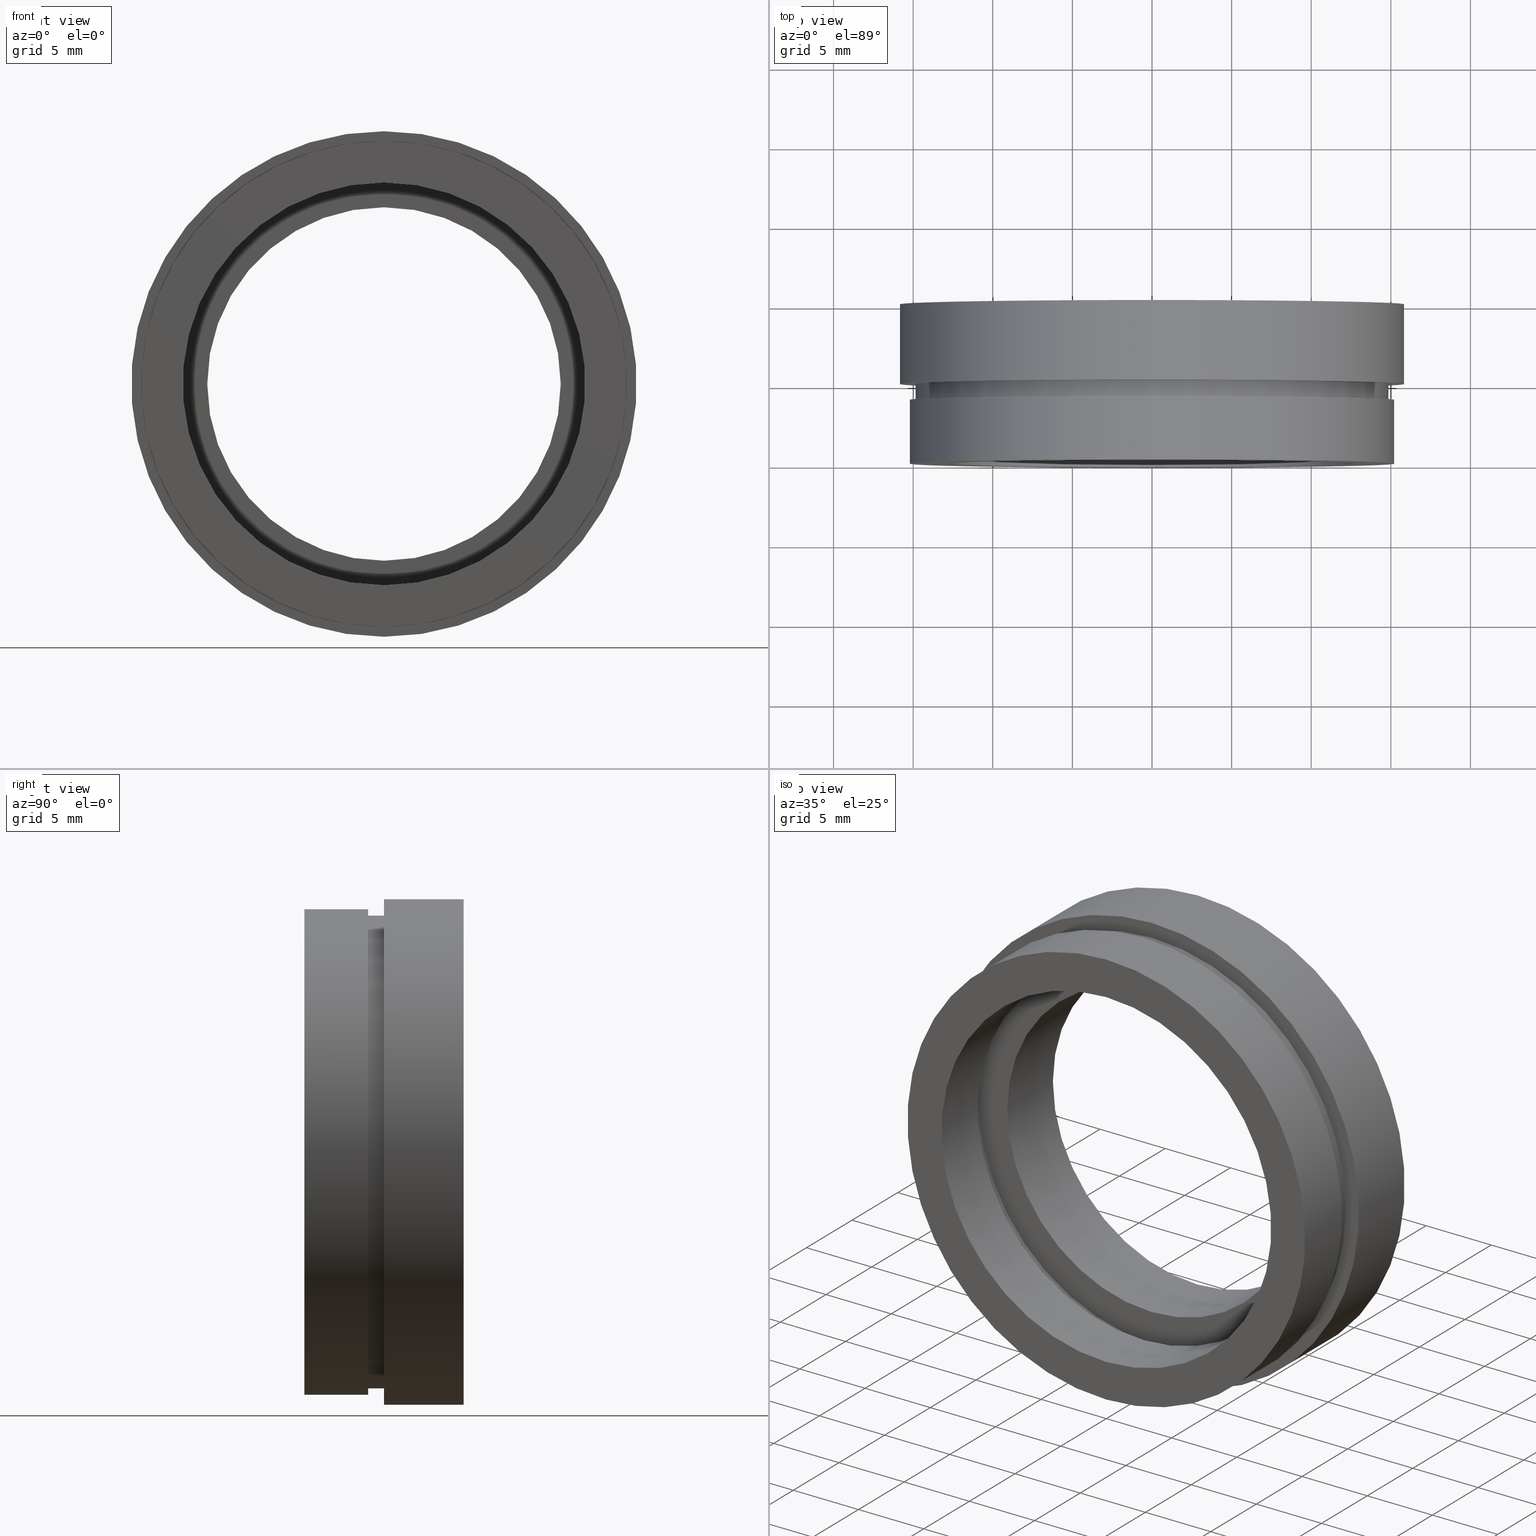
[diagram: canonical four-view strip — front | top / right | iso, engineering-drawing reading convention]
A machine part, canonical four-view strip (front | top / right | iso — engineering-drawing reading convention). The complete STEP part file that produces these views, byte-faithful:
ISO-10303-21;
HEADER;
FILE_DESCRIPTION (( 'STEP AP214' ),
    '1' );
FILE_NAME ('504105.STEP',
    '2019-10-10T02:18:36',
    ( 'user' ),
    ( '΢���й�' ),
    'SwSTEP 2.0',
    'SolidWorks 2016',
    '' );
FILE_SCHEMA (( 'AUTOMOTIVE_DESIGN' ));
ENDSEC;

DATA;
#1 = ORIENTED_EDGE ( 'NONE', *, *, #354, .F. ) ;
#2 = EDGE_CURVE ( 'NONE', #604, #603, #29, .T. ) ;
#3 = CIRCLE ( 'NONE', #611, 15.25000000000000200 ) ;
#4 = FACE_OUTER_BOUND ( 'NONE', #186, .T. ) ;
#5 = CARTESIAN_POINT ( 'NONE',  ( 0.0000000000000000000, 5.000000000000000900, 15.87500000000000000 ) ) ;
#6 = MECHANICAL_DESIGN_GEOMETRIC_PRESENTATION_REPRESENTATION (  '', ( #251 ), #299 ) ;
#7 = DIRECTION ( 'NONE',  ( -0.0000000000000000000, 1.000000000000000000, -0.0000000000000000000 ) ) ;
#8 = ORIENTED_EDGE ( 'NONE', *, *, #454, .T. ) ;
#9 = CIRCLE ( 'NONE', #371, 13.25000000000000000 ) ;
#10 = ORIENTED_EDGE ( 'NONE', *, *, #60, .T. ) ;
#11 =( LENGTH_UNIT ( ) NAMED_UNIT ( * ) SI_UNIT ( .MILLI., .METRE. ) );
#12 = DIRECTION ( 'NONE',  ( -0.0000000000000000000, 1.000000000000000000, -0.0000000000000000000 ) ) ;
#13 = DIRECTION ( 'NONE',  ( 0.0000000000000000000, 0.0000000000000000000, 1.000000000000000000 ) ) ;
#14 = CARTESIAN_POINT ( 'NONE',  ( 0.0000000000000000000, 5.000000000000000900, 0.0000000000000000000 ) ) ;
#15 = VERTEX_POINT ( 'NONE', #156 ) ;
#16 = DIRECTION ( 'NONE',  ( 0.0000000000000000000, 0.0000000000000000000, 1.000000000000000000 ) ) ;
#17 = AXIS2_PLACEMENT_3D ( 'NONE', #252, #158, #314 ) ;
#18 = DIRECTION ( 'NONE',  ( -0.0000000000000000000, 1.000000000000000000, -0.0000000000000000000 ) ) ;
#19 = LINE ( 'NONE', #239, #523 ) ;
#20 = AXIS2_PLACEMENT_3D ( 'NONE', #531, #187, #331 ) ;
#21 = CARTESIAN_POINT ( 'NONE',  ( 0.0000000000000000000, 5.000000000000000900, 0.0000000000000000000 ) ) ;
#22 =( LENGTH_UNIT ( ) NAMED_UNIT ( * ) SI_UNIT ( .MILLI., .METRE. ) );
#23 = APPLICATION_CONTEXT ( 'automotive_design' ) ;
#24 = DIRECTION ( 'NONE',  ( -0.0000000000000000000, 1.000000000000000000, -0.0000000000000000000 ) ) ;
#25 = CARTESIAN_POINT ( 'NONE',  ( 0.0000000000000000000, 13.74468085106383300, 15.87500000000000000 ) ) ;
#26 = ORIENTED_EDGE ( 'NONE', *, *, #218, .T. ) ;
#27 = ADVANCED_FACE ( 'NONE', ( #535, #68 ), #173, .F. ) ;
#28 = ORIENTED_EDGE ( 'NONE', *, *, #346, .T. ) ;
#29 = CIRCLE ( 'NONE', #112, 11.10000000000000000 ) ;
#30 = EDGE_CURVE ( 'NONE', #263, #418, #401, .T. ) ;
#31 = SURFACE_SIDE_STYLE ('',( #422 ) ) ;
#32 =( NAMED_UNIT ( * ) PLANE_ANGLE_UNIT ( ) SI_UNIT ( $, .RADIAN. ) );
#33 = PRESENTATION_LAYER_ASSIGNMENT (  '', '', ( #473 ) ) ;
#34 = EDGE_LOOP ( 'NONE', ( #425, #179, #278, #554 ) ) ;
#35 = SURFACE_STYLE_FILL_AREA ( #107 ) ;
#36 = CYLINDRICAL_SURFACE ( 'NONE', #272, 11.10000000000000000 ) ;
#37 = EDGE_LOOP ( 'NONE', ( #533, #234 ) ) ;
#38 = PLANE ( 'NONE',  #456 ) ;
#39 =( NAMED_UNIT ( * ) SI_UNIT ( $, .STERADIAN. ) SOLID_ANGLE_UNIT ( ) );
#40 = CARTESIAN_POINT ( 'NONE',  ( 0.0000000000000000000, 3.999999999999998200, 0.0000000000000000000 ) ) ;
#41 = UNCERTAINTY_MEASURE_WITH_UNIT (LENGTH_MEASURE( 1.000000000000000100E-005 ), #11, 'distance_accuracy_value', 'NONE');
#42 = EDGE_LOOP ( 'NONE', ( #289, #551 ) ) ;
#43 = ADVANCED_FACE ( 'NONE', ( #268, #562 ), #193, .F. ) ;
#44 = DIRECTION ( 'NONE',  ( 0.0000000000000000000, -0.0000000000000000000, -1.000000000000000000 ) ) ;
#45 = VERTEX_POINT ( 'NONE', #171 ) ;
#46 = ADVANCED_FACE ( 'NONE', ( #311 ), #256, .F. ) ;
#47 = MECHANICAL_DESIGN_GEOMETRIC_PRESENTATION_REPRESENTATION (  '', ( #473 ), #464 ) ;
#48 = CARTESIAN_POINT ( 'NONE',  ( 1.548565877521828200E-015, 13.74468085106383300, -12.64500000000000000 ) ) ;
#49 = VECTOR ( 'NONE', #389, 1000.000000000000000 ) ;
#50 = VERTEX_POINT ( 'NONE', #5 ) ;
#51 = DIRECTION ( 'NONE',  ( -0.0000000000000000000, 1.000000000000000000, -0.0000000000000000000 ) ) ;
#52 = ORIENTED_EDGE ( 'NONE', *, *, #437, .T. ) ;
#53 =( LENGTH_UNIT ( ) NAMED_UNIT ( * ) SI_UNIT ( .MILLI., .METRE. ) );
#54 =( NAMED_UNIT ( * ) SI_UNIT ( $, .STERADIAN. ) SOLID_ANGLE_UNIT ( ) );
#55 = PRESENTATION_LAYER_ASSIGNMENT (  '', '', ( #558 ) ) ;
#56 = DIRECTION ( 'NONE',  ( 0.0000000000000000000, -0.0000000000000000000, -1.000000000000000000 ) ) ;
#57 = ADVANCED_BREP_SHAPE_REPRESENTATION ( '504105', ( #461, #601 ), #489 ) ;
#58 = DIRECTION ( 'NONE',  ( -0.0000000000000000000, 1.000000000000000000, -0.0000000000000000000 ) ) ;
#59 = ORIENTED_EDGE ( 'NONE', *, *, #354, .T. ) ;
#60 = EDGE_CURVE ( 'NONE', #595, #76, #19, .T. ) ;
#61 = LINE ( 'NONE', #524, #128 ) ;
#62 = PRESENTATION_LAYER_ASSIGNMENT (  '', '', ( #438 ) ) ;
#63 = ORIENTED_EDGE ( 'NONE', *, *, #237, .F. ) ;
#64 = DIRECTION ( 'NONE',  ( 0.0000000000000000000, -1.000000000000000000, 0.0000000000000000000 ) ) ;
#65 = EDGE_CURVE ( 'NONE', #537, #315, #147, .T. ) ;
#66 = FILL_AREA_STYLE ('',( #135 ) ) ;
#67 = VERTEX_POINT ( 'NONE', #259 ) ;
#68 = FACE_BOUND ( 'NONE', #441, .T. ) ;
#69 =( NAMED_UNIT ( * ) SI_UNIT ( $, .STERADIAN. ) SOLID_ANGLE_UNIT ( ) );
#70 = PRESENTATION_STYLE_ASSIGNMENT (( #472 ) ) ;
#71 =( GEOMETRIC_REPRESENTATION_CONTEXT ( 3 ) GLOBAL_UNCERTAINTY_ASSIGNED_CONTEXT ( ( #334 ) ) GLOBAL_UNIT_ASSIGNED_CONTEXT ( ( #444, #150, #498 ) ) REPRESENTATION_CONTEXT ( 'NONE', 'WORKASPACE' ) );
#72 = UNCERTAINTY_MEASURE_WITH_UNIT (LENGTH_MEASURE( 1.000000000000000100E-005 ), #53, 'distance_accuracy_value', 'NONE');
#73 =( NAMED_UNIT ( * ) SI_UNIT ( $, .STERADIAN. ) SOLID_ANGLE_UNIT ( ) );
#74 = CARTESIAN_POINT ( 'NONE',  ( 0.0000000000000000000, -1.734723475976807100E-015, 0.0000000000000000000 ) ) ;
#75 = PRESENTATION_LAYER_ASSIGNMENT (  '', '', ( #363 ) ) ;
#76 = VERTEX_POINT ( 'NONE', #195 ) ;
#77 = VERTEX_POINT ( 'NONE', #536 ) ;
#78 = ADVANCED_FACE ( 'NONE', ( #4 ), #368, .F. ) ;
#79 = AXIS2_PLACEMENT_3D ( 'NONE', #14, #394, #178 ) ;
#80 = PRODUCT_RELATED_PRODUCT_CATEGORY ( 'part', '', ( #561 ) ) ;
#81 = ORIENTED_EDGE ( 'NONE', *, *, #583, .F. ) ;
#82 = COLOUR_RGB ( '',1.000000000000000000, 1.000000000000000000, 1.000000000000000000 ) ;
#83 = CYLINDRICAL_SURFACE ( 'NONE', #317, 15.25000000000000200 ) ;
#84 = EDGE_CURVE ( 'NONE', #76, #497, #387, .T. ) ;
#85 = FILL_AREA_STYLE ('',( #592 ) ) ;
#86 = CARTESIAN_POINT ( 'NONE',  ( 0.0000000000000000000, 9.999999999999998200, 11.10000000000000000 ) ) ;
#87 = CARTESIAN_POINT ( 'NONE',  ( 0.0000000000000000000, 0.0000000000000000000, 0.0000000000000000000 ) ) ;
#88 = SURFACE_STYLE_USAGE ( .BOTH. , #479 ) ;
#89 = CARTESIAN_POINT ( 'NONE',  ( 1.818600496733820300E-015, 4.000000000000000000, -14.85000000000000500 ) ) ;
#90 =( GEOMETRIC_REPRESENTATION_CONTEXT ( 3 ) GLOBAL_UNCERTAINTY_ASSIGNED_CONTEXT ( ( #557 ) ) GLOBAL_UNIT_ASSIGNED_CONTEXT ( ( #501, #250, #545 ) ) REPRESENTATION_CONTEXT ( 'NONE', 'WORKASPACE' ) );
#91 = CIRCLE ( 'NONE', #609, 13.25000000000000000 ) ;
#92 = LINE ( 'NONE', #25, #469 ) ;
#93 = SURFACE_SIDE_STYLE ('',( #492 ) ) ;
#94 = VERTEX_POINT ( 'NONE', #103 ) ;
#95 = EDGE_CURVE ( 'NONE', #418, #263, #127, .T. ) ;
#96 = ADVANCED_FACE ( 'NONE', ( #194 ), #83, .T. ) ;
#97 = CARTESIAN_POINT ( 'NONE',  ( 0.0000000000000000000, 9.999999999999998200, 0.0000000000000000000 ) ) ;
#98 = AXIS2_PLACEMENT_3D ( 'NONE', #87, #477, #428 ) ;
#99 = CARTESIAN_POINT ( 'NONE',  ( 0.0000000000000000000, 3.999999999999996400, 12.64500000000000000 ) ) ;
#100 = COLOUR_RGB ( '',1.000000000000000000, 1.000000000000000000, 1.000000000000000000 ) ;
#101 = COLOUR_RGB ( '',1.000000000000000000, 1.000000000000000000, 1.000000000000000000 ) ;
#102 = CARTESIAN_POINT ( 'NONE',  ( 11.10000000000000000, 9.999999999999998200, 0.0000000000000000000 ) ) ;
#103 = CARTESIAN_POINT ( 'NONE',  ( 1.622657008870242900E-015, 3.999999999999998200, -13.25000000000000000 ) ) ;
#104 = SURFACE_STYLE_USAGE ( .BOTH. , #512 ) ;
#105 = ORIENTED_EDGE ( 'NONE', *, *, #322, .T. ) ;
#106 = SURFACE_STYLE_FILL_AREA ( #160 ) ;
#107 = FILL_AREA_STYLE ('',( #260 ) ) ;
#108 = ORIENTED_EDGE ( 'NONE', *, *, #520, .T. ) ;
#109 = CARTESIAN_POINT ( 'NONE',  ( 0.0000000000000000000, 13.74468085106383300, 0.0000000000000000000 ) ) ;
#110 = UNCERTAINTY_MEASURE_WITH_UNIT (LENGTH_MEASURE( 1.000000000000000100E-005 ), #377, 'distance_accuracy_value', 'NONE');
#111 = FILL_AREA_STYLE_COLOUR ( '', #509 ) ;
#112 = AXIS2_PLACEMENT_3D ( 'NONE', #408, #24, #13 ) ;
#113 = DIRECTION ( 'NONE',  ( -0.0000000000000000000, 1.000000000000000000, -0.0000000000000000000 ) ) ;
#114 = PRODUCT_DEFINITION ( 'δ֪', '', #565, #162 ) ;
#115 = FACE_BOUND ( 'NONE', #275, .T. ) ;
#116 = DIRECTION ( 'NONE',  ( 0.0000000000000000000, 0.0000000000000000000, 1.000000000000000000 ) ) ;
#117 = APPLICATION_PROTOCOL_DEFINITION ( 'draft international standard', 'automotive_design', 1998, #23 ) ;
#118 = SURFACE_STYLE_USAGE ( .BOTH. , #31 ) ;
#119 = EDGE_LOOP ( 'NONE', ( #546, #518, #52, #414 ) ) ;
#120 = ORIENTED_EDGE ( 'NONE', *, *, #443, .F. ) ;
#121 = CIRCLE ( 'NONE', #238, 13.25000000000000000 ) ;
#122 = VERTEX_POINT ( 'NONE', #433 ) ;
#123 = AXIS2_PLACEMENT_3D ( 'NONE', #166, #495, #410 ) ;
#124 = PLANE ( 'NONE',  #585 ) ;
#125 = EDGE_LOOP ( 'NONE', ( #229, #544, #294, #436 ) ) ;
#126 = FACE_OUTER_BOUND ( 'NONE', #174, .T. ) ;
#127 = CIRCLE ( 'NONE', #79, 14.85000000000000100 ) ;
#128 = VECTOR ( 'NONE', #300, 1000.000000000000000 ) ;
#129 = DIRECTION ( 'NONE',  ( 1.000000000000000000, 0.0000000000000000000, 0.0000000000000000000 ) ) ;
#130 = EDGE_CURVE ( 'NONE', #45, #603, #343, .T. ) ;
#131 = CARTESIAN_POINT ( 'NONE',  ( 0.0000000000000000000, 10.00000000000000000, 15.87500000000000000 ) ) ;
#132 = MECHANICAL_DESIGN_GEOMETRIC_PRESENTATION_REPRESENTATION (  '', ( #169 ), #549 ) ;
#133 = FACE_OUTER_BOUND ( 'NONE', #607, .T. ) ;
#134 = ORIENTED_EDGE ( 'NONE', *, *, #316, .T. ) ;
#135 = FILL_AREA_STYLE_COLOUR ( '', #366 ) ;
#136 = LINE ( 'NONE', #336, #393 ) ;
#137 = SURFACE_STYLE_FILL_AREA ( #247 ) ;
#138 = ORIENTED_EDGE ( 'NONE', *, *, #467, .F. ) ;
#139 = DIRECTION ( 'NONE',  ( 0.0000000000000000000, 0.0000000000000000000, 1.000000000000000000 ) ) ;
#140 =( GEOMETRIC_REPRESENTATION_CONTEXT ( 3 ) GLOBAL_UNCERTAINTY_ASSIGNED_CONTEXT ( ( #146 ) ) GLOBAL_UNIT_ASSIGNED_CONTEXT ( ( #453, #400, #69 ) ) REPRESENTATION_CONTEXT ( 'NONE', 'WORKASPACE' ) );
#141 = DIRECTION ( 'NONE',  ( 0.0000000000000000000, 0.0000000000000000000, 1.000000000000000000 ) ) ;
#142 = FILL_AREA_STYLE ('',( #529 ) ) ;
#143 = DIRECTION ( 'NONE',  ( -0.0000000000000000000, 1.000000000000000000, -0.0000000000000000000 ) ) ;
#144 = ORIENTED_EDGE ( 'NONE', *, *, #467, .T. ) ;
#145 = ADVANCED_FACE ( 'NONE', ( #516, #470 ), #177, .F. ) ;
#146 = UNCERTAINTY_MEASURE_WITH_UNIT (LENGTH_MEASURE( 1.000000000000000100E-005 ), #453, 'distance_accuracy_value', 'NONE');
#147 = LINE ( 'NONE', #48, #49 ) ;
#148 = EDGE_CURVE ( 'NONE', #122, #45, #462, .T. ) ;
#149 = VERTEX_POINT ( 'NONE', #99 ) ;
#150 =( NAMED_UNIT ( * ) PLANE_ANGLE_UNIT ( ) SI_UNIT ( $, .RADIAN. ) );
#151 = AXIS2_PLACEMENT_3D ( 'NONE', #548, #202, #505 ) ;
#152 = DIRECTION ( 'NONE',  ( -0.0000000000000000000, 1.000000000000000000, -0.0000000000000000000 ) ) ;
#153 = CARTESIAN_POINT ( 'NONE',  ( 0.0000000000000000000, 13.74468085106383300, 0.0000000000000000000 ) ) ;
#154 = AXIS2_PLACEMENT_3D ( 'NONE', #419, #224, #139 ) ;
#155 = ORIENTED_EDGE ( 'NONE', *, *, #476, .T. ) ;
#156 = CARTESIAN_POINT ( 'NONE',  ( 1.944126793646423200E-015, 10.00000000000000000, -15.87500000000000000 ) ) ;
#157 = CIRCLE ( 'NONE', #151, 15.87500000000000000 ) ;
#158 = DIRECTION ( 'NONE',  ( -0.0000000000000000000, 1.000000000000000000, 0.0000000000000000000 ) ) ;
#159 = PRESENTATION_STYLE_ASSIGNMENT (( #104 ) ) ;
#160 = FILL_AREA_STYLE ('',( #304 ) ) ;
#161 = ORIENTED_EDGE ( 'NONE', *, *, #84, .T. ) ;
#162 = PRODUCT_DEFINITION_CONTEXT ( 'detailed design', #319, 'design' ) ;
#163 = DIRECTION ( 'NONE',  ( -0.0000000000000000000, 1.000000000000000000, -0.0000000000000000000 ) ) ;
#164 = UNCERTAINTY_MEASURE_WITH_UNIT (LENGTH_MEASURE( 1.000000000000000100E-005 ), #575, 'distance_accuracy_value', 'NONE');
#165 = CARTESIAN_POINT ( 'NONE',  ( 14.85000000000000300, 4.000000000000000000, 0.0000000000000000000 ) ) ;
#166 = CARTESIAN_POINT ( 'NONE',  ( 0.0000000000000000000, 4.000000000000000000, 0.0000000000000000000 ) ) ;
#167 = PRESENTATION_STYLE_ASSIGNMENT (( #118 ) ) ;
#168 = ORIENTED_EDGE ( 'NONE', *, *, #203, .T. ) ;
#169 = STYLED_ITEM ( 'NONE', ( #328 ), #284 ) ;
#170 = COLOUR_RGB ( '',1.000000000000000000, 1.000000000000000000, 1.000000000000000000 ) ;
#171 = CARTESIAN_POINT ( 'NONE',  ( 0.0000000000000000000, 4.999999999999997300, 11.10000000000000000 ) ) ;
#172 = EDGE_LOOP ( 'NONE', ( #144, #8, #358, #318 ) ) ;
#173 = PLANE ( 'NONE',  #17 ) ;
#174 = EDGE_LOOP ( 'NONE', ( #161, #586 ) ) ;
#175 = EDGE_LOOP ( 'NONE', ( #333, #483 ) ) ;
#176 = EDGE_CURVE ( 'NONE', #315, #149, #323, .T. ) ;
#177 = PLANE ( 'NONE',  #351 ) ;
#178 = DIRECTION ( 'NONE',  ( 0.0000000000000000000, 0.0000000000000000000, 1.000000000000000000 ) ) ;
#179 = ORIENTED_EDGE ( 'NONE', *, *, #417, .T. ) ;
#180 = CARTESIAN_POINT ( 'NONE',  ( 0.0000000000000000000, 13.74468085106383300, 0.0000000000000000000 ) ) ;
#181 = SURFACE_SIDE_STYLE ('',( #242 ) ) ;
#182 = CARTESIAN_POINT ( 'NONE',  ( 0.0000000000000000000, 13.74468085106383300, 0.0000000000000000000 ) ) ;
#183 = CARTESIAN_POINT ( 'NONE',  ( 1.818600496733819900E-015, 13.74468085106383300, -14.85000000000000100 ) ) ;
#184 = AXIS2_PLACEMENT_3D ( 'NONE', #21, #458, #353 ) ;
#185 = CARTESIAN_POINT ( 'NONE',  ( 0.0000000000000000000, 13.74468085106383300, 0.0000000000000000000 ) ) ;
#186 = EDGE_LOOP ( 'NONE', ( #286, #63, #572, #134 ) ) ;
#187 = DIRECTION ( 'NONE',  ( -0.0000000000000000000, 1.000000000000000000, -0.0000000000000000000 ) ) ;
#188 = VECTOR ( 'NONE', #327, 1000.000000000000000 ) ;
#189 = VERTEX_POINT ( 'NONE', #222 ) ;
#190 = AXIS2_PLACEMENT_3D ( 'NONE', #180, #221, #573 ) ;
#191 = ADVANCED_FACE ( 'NONE', ( #133 ), #478, .F. ) ;
#192 = EDGE_CURVE ( 'NONE', #149, #315, #292, .T. ) ;
#193 = PLANE ( 'NONE',  #610 ) ;
#194 = FACE_OUTER_BOUND ( 'NONE', #172, .T. ) ;
#195 = CARTESIAN_POINT ( 'NONE',  ( 0.0000000000000000000, 4.000000000000000000, 15.25000000000000200 ) ) ;
#196 = AXIS2_PLACEMENT_3D ( 'NONE', #515, #502, #596 ) ;
#197 = DIRECTION ( 'NONE',  ( 0.0000000000000000000, 0.0000000000000000000, 1.000000000000000000 ) ) ;
#198 = FILL_AREA_STYLE_COLOUR ( '', #482 ) ;
#199 = SURFACE_STYLE_USAGE ( .BOTH. , #396 ) ;
#200 = EDGE_LOOP ( 'NONE', ( #243, #491, #10, #302 ) ) ;
#201 = DIRECTION ( 'NONE',  ( -0.0000000000000000000, 1.000000000000000000, -0.0000000000000000000 ) ) ;
#202 = DIRECTION ( 'NONE',  ( -0.0000000000000000000, 1.000000000000000000, -0.0000000000000000000 ) ) ;
#203 = EDGE_CURVE ( 'NONE', #214, #50, #390, .T. ) ;
#204 = AXIS2_PLACEMENT_3D ( 'NONE', #357, #18, #312 ) ;
#205 = ORIENTED_EDGE ( 'NONE', *, *, #95, .F. ) ;
#206 = ORIENTED_EDGE ( 'NONE', *, *, #30, .F. ) ;
#207 = CARTESIAN_POINT ( 'NONE',  ( 0.0000000000000000000, 0.0000000000000000000, 0.0000000000000000000 ) ) ;
#208 = VECTOR ( 'NONE', #7, 1000.000000000000000 ) ;
#209 = CYLINDRICAL_SURFACE ( 'NONE', #618, 12.64500000000000000 ) ;
#210 = DIRECTION ( 'NONE',  ( -0.0000000000000000000, 1.000000000000000000, -0.0000000000000000000 ) ) ;
#211 = ORIENTED_EDGE ( 'NONE', *, *, #30, .T. ) ;
#212 = MECHANICAL_DESIGN_GEOMETRIC_PRESENTATION_REPRESENTATION (  '', ( #519 ), #90 ) ;
#213 = LINE ( 'NONE', #183, #570 ) ;
#214 = VERTEX_POINT ( 'NONE', #310 ) ;
#215 = APPLICATION_PROTOCOL_DEFINITION ( 'draft international standard', 'automotive_design', 1998, #319 ) ;
#216 = UNCERTAINTY_MEASURE_WITH_UNIT (LENGTH_MEASURE( 1.000000000000000100E-005 ), #379, 'distance_accuracy_value', 'NONE');
#217 = CARTESIAN_POINT ( 'NONE',  ( 1.622657008870242900E-015, 13.74468085106383300, -13.25000000000000000 ) ) ;
#218 = EDGE_CURVE ( 'NONE', #15, #452, #411, .T. ) ;
#219 = CARTESIAN_POINT ( 'NONE',  ( 0.0000000000000000000, 13.74468085106383300, 11.10000000000000000 ) ) ;
#220 = AXIS2_PLACEMENT_3D ( 'NONE', #579, #511, #588 ) ;
#221 = DIRECTION ( 'NONE',  ( -0.0000000000000000000, 1.000000000000000000, -0.0000000000000000000 ) ) ;
#222 = CARTESIAN_POINT ( 'NONE',  ( 1.622657008870242900E-015, 4.999999999999999100, -13.25000000000000000 ) ) ;
#223 = PRESENTATION_STYLE_ASSIGNMENT (( #432 ) ) ;
#224 = DIRECTION ( 'NONE',  ( -0.0000000000000000000, 1.000000000000000000, -0.0000000000000000000 ) ) ;
#225 = DIRECTION ( 'NONE',  ( -0.0000000000000000000, 1.000000000000000000, -0.0000000000000000000 ) ) ;
#226 = AXIS2_PLACEMENT_3D ( 'NONE', #306, #547, #503 ) ;
#227 = DIRECTION ( 'NONE',  ( 0.0000000000000000000, 0.0000000000000000000, 1.000000000000000000 ) ) ;
#228 = ORIENTED_EDGE ( 'NONE', *, *, #270, .T. ) ;
#229 = ORIENTED_EDGE ( 'NONE', *, *, #346, .F. ) ;
#230 = FACE_OUTER_BOUND ( 'NONE', #378, .T. ) ;
#231 = ORIENTED_EDGE ( 'NONE', *, *, #437, .F. ) ;
#232 = FILL_AREA_STYLE ('',( #280 ) ) ;
#233 = ADVANCED_FACE ( 'NONE', ( #277 ), #465, .T. ) ;
#234 = ORIENTED_EDGE ( 'NONE', *, *, #2, .F. ) ;
#235 = CARTESIAN_POINT ( 'NONE',  ( 0.0000000000000000000, 13.74468085106383300, 0.0000000000000000000 ) ) ;
#236 = VECTOR ( 'NONE', #341, 1000.000000000000000 ) ;
#237 = EDGE_CURVE ( 'NONE', #291, #94, #91, .T. ) ;
#238 = AXIS2_PLACEMENT_3D ( 'NONE', #40, #480, #141 ) ;
#239 = CARTESIAN_POINT ( 'NONE',  ( 0.0000000000000000000, 13.74468085106383300, 15.25000000000000200 ) ) ;
#240 = DIRECTION ( 'NONE',  ( -0.0000000000000000000, 1.000000000000000000, -0.0000000000000000000 ) ) ;
#241 = CARTESIAN_POINT ( 'NONE',  ( 1.818600496733819900E-015, 5.000000000000000900, -14.85000000000000100 ) ) ;
#242 = SURFACE_STYLE_FILL_AREA ( #85 ) ;
#243 = ORIENTED_EDGE ( 'NONE', *, *, #454, .F. ) ;
#244 = CIRCLE ( 'NONE', #196, 15.25000000000000200 ) ;
#245 =( NAMED_UNIT ( * ) PLANE_ANGLE_UNIT ( ) SI_UNIT ( $, .RADIAN. ) );
#246 = ORIENTED_EDGE ( 'NONE', *, *, #176, .T. ) ;
#247 = FILL_AREA_STYLE ('',( #198 ) ) ;
#248 =( GEOMETRIC_REPRESENTATION_CONTEXT ( 3 ) GLOBAL_UNCERTAINTY_ASSIGNED_CONTEXT ( ( #41 ) ) GLOBAL_UNIT_ASSIGNED_CONTEXT ( ( #11, #245, #406 ) ) REPRESENTATION_CONTEXT ( 'NONE', 'WORKASPACE' ) );
#249 = DIRECTION ( 'NONE',  ( 0.0000000000000000000, 0.0000000000000000000, 1.000000000000000000 ) ) ;
#250 =( NAMED_UNIT ( * ) PLANE_ANGLE_UNIT ( ) SI_UNIT ( $, .RADIAN. ) );
#251 = STYLED_ITEM ( 'NONE', ( #606 ), #57 ) ;
#252 = CARTESIAN_POINT ( 'NONE',  ( 15.25000000000000200, -1.241947756431454800E-015, 0.0000000000000000000 ) ) ;
#253 = ORIENTED_EDGE ( 'NONE', *, *, #391, .F. ) ;
#254 = SURFACE_STYLE_USAGE ( .BOTH. , #593 ) ;
#255 = VECTOR ( 'NONE', #474, 1000.000000000000000 ) ;
#256 = CYLINDRICAL_SURFACE ( 'NONE', #541, 13.25000000000000000 ) ;
#257 = DIRECTION ( 'NONE',  ( 0.0000000000000000000, 0.0000000000000000000, 1.000000000000000000 ) ) ;
#258 = CARTESIAN_POINT ( 'NONE',  ( 1.548565877521828200E-015, 3.999999999999996400, -12.64500000000000000 ) ) ;
#259 = CARTESIAN_POINT ( 'NONE',  ( 0.0000000000000000000, -1.734723475976807100E-015, 12.64500000000000000 ) ) ;
#260 = FILL_AREA_STYLE_COLOUR ( '', #170 ) ;
#261 = PRESENTATION_LAYER_ASSIGNMENT (  '', '', ( #578 ) ) ;
#262 = ORIENTED_EDGE ( 'NONE', *, *, #203, .F. ) ;
#263 = VERTEX_POINT ( 'NONE', #399 ) ;
#264 = SURFACE_STYLE_FILL_AREA ( #66 ) ;
#265 = CYLINDRICAL_SURFACE ( 'NONE', #154, 15.87500000000000000 ) ;
#266 = ORIENTED_EDGE ( 'NONE', *, *, #621, .F. ) ;
#267 = FACE_OUTER_BOUND ( 'NONE', #338, .T. ) ;
#268 = FACE_BOUND ( 'NONE', #175, .T. ) ;
#269 = CARTESIAN_POINT ( 'NONE',  ( 0.0000000000000000000, 4.999999999999997300, 0.0000000000000000000 ) ) ;
#270 = EDGE_CURVE ( 'NONE', #452, #15, #157, .T. ) ;
#271 = CARTESIAN_POINT ( 'NONE',  ( 12.64500000000000000, 3.999999999999998200, 0.0000000000000000000 ) ) ;
#272 = AXIS2_PLACEMENT_3D ( 'NONE', #182, #430, #527 ) ;
#273 = PLANE ( 'NONE',  #309 ) ;
#274 = CARTESIAN_POINT ( 'NONE',  ( 0.0000000000000000000, 0.0000000000000000000, 0.0000000000000000000 ) ) ;
#275 = EDGE_LOOP ( 'NONE', ( #211, #559 ) ) ;
#276 = CARTESIAN_POINT ( 'NONE',  ( 0.0000000000000000000, 13.74468085106383300, 12.64500000000000000 ) ) ;
#277 = FACE_OUTER_BOUND ( 'NONE', #200, .T. ) ;
#278 = ORIENTED_EDGE ( 'NONE', *, *, #2, .T. ) ;
#279 =( NAMED_UNIT ( * ) SI_UNIT ( $, .STERADIAN. ) SOLID_ANGLE_UNIT ( ) );
#280 = FILL_AREA_STYLE_COLOUR ( '', #101 ) ;
#281 = DIRECTION ( 'NONE',  ( -0.0000000000000000000, 1.000000000000000000, -0.0000000000000000000 ) ) ;
#282 = AXIS2_PLACEMENT_3D ( 'NONE', #373, #566, #227 ) ;
#283 = DIRECTION ( 'NONE',  ( -0.0000000000000000000, 1.000000000000000000, -0.0000000000000000000 ) ) ;
#284 = ADVANCED_FACE ( 'NONE', ( #267 ), #349, .F. ) ;
#285 = DIRECTION ( 'NONE',  ( 0.0000000000000000000, 0.0000000000000000000, 1.000000000000000000 ) ) ;
#286 = ORIENTED_EDGE ( 'NONE', *, *, #493, .F. ) ;
#287 = EDGE_CURVE ( 'NONE', #497, #76, #244, .T. ) ;
#288 = AXIS2_PLACEMENT_3D ( 'NONE', #616, #463, #116 ) ;
#289 = ORIENTED_EDGE ( 'NONE', *, *, #621, .T. ) ;
#290 = DIRECTION ( 'NONE',  ( 0.0000000000000000000, 0.0000000000000000000, 1.000000000000000000 ) ) ;
#291 = VERTEX_POINT ( 'NONE', #455 ) ;
#292 = CIRCLE ( 'NONE', #543, 12.64500000000000000 ) ;
#293 = VECTOR ( 'NONE', #374, 1000.000000000000000 ) ;
#294 = ORIENTED_EDGE ( 'NONE', *, *, #391, .T. ) ;
#295 = AXIS2_PLACEMENT_3D ( 'NONE', #74, #225, #534 ) ;
#296 = FILL_AREA_STYLE ('',( #111 ) ) ;
#297 = SURFACE_SIDE_STYLE ('',( #137 ) ) ;
#298 = DIRECTION ( 'NONE',  ( -0.0000000000000000000, 1.000000000000000000, -0.0000000000000000000 ) ) ;
#299 =( GEOMETRIC_REPRESENTATION_CONTEXT ( 3 ) GLOBAL_UNCERTAINTY_ASSIGNED_CONTEXT ( ( #72 ) ) GLOBAL_UNIT_ASSIGNED_CONTEXT ( ( #53, #32, #372 ) ) REPRESENTATION_CONTEXT ( 'NONE', 'WORKASPACE' ) );
#300 = DIRECTION ( 'NONE',  ( -0.0000000000000000000, 1.000000000000000000, -0.0000000000000000000 ) ) ;
#301 = DIRECTION ( 'NONE',  ( 0.0000000000000000000, 0.0000000000000000000, 1.000000000000000000 ) ) ;
#302 = ORIENTED_EDGE ( 'NONE', *, *, #287, .F. ) ;
#303 = FACE_OUTER_BOUND ( 'NONE', #620, .T. ) ;
#304 = FILL_AREA_STYLE_COLOUR ( '', #82 ) ;
#305 = VERTEX_POINT ( 'NONE', #402 ) ;
#306 = CARTESIAN_POINT ( 'NONE',  ( 0.0000000000000000000, 13.74468085106383300, 0.0000000000000000000 ) ) ;
#307 = EDGE_CURVE ( 'NONE', #67, #537, #563, .T. ) ;
#308 =( NAMED_UNIT ( * ) PLANE_ANGLE_UNIT ( ) SI_UNIT ( $, .RADIAN. ) );
#309 = AXIS2_PLACEMENT_3D ( 'NONE', #375, #591, #324 ) ;
#310 = CARTESIAN_POINT ( 'NONE',  ( 1.944126793646423200E-015, 5.000000000000000900, -15.87500000000000000 ) ) ;
#311 = FACE_OUTER_BOUND ( 'NONE', #125, .T. ) ;
#312 = DIRECTION ( 'NONE',  ( 0.0000000000000000000, 0.0000000000000000000, 1.000000000000000000 ) ) ;
#313 = CYLINDRICAL_SURFACE ( 'NONE', #190, 14.85000000000000100 ) ;
#314 = DIRECTION ( 'NONE',  ( 0.0000000000000000000, 0.0000000000000000000, 1.000000000000000000 ) ) ;
#315 = VERTEX_POINT ( 'NONE', #258 ) ;
#316 = EDGE_CURVE ( 'NONE', #305, #189, #332, .T. ) ;
#317 = AXIS2_PLACEMENT_3D ( 'NONE', #235, #550, #285 ) ;
#318 = ORIENTED_EDGE ( 'NONE', *, *, #60, .F. ) ;
#319 = APPLICATION_CONTEXT ( 'automotive_design' ) ;
#320 = CIRCLE ( 'NONE', #123, 14.85000000000000300 ) ;
#321 = ORIENTED_EDGE ( 'NONE', *, *, #316, .F. ) ;
#322 = EDGE_CURVE ( 'NONE', #50, #214, #481, .T. ) ;
#323 = CIRCLE ( 'NONE', #282, 12.64500000000000000 ) ;
#324 = DIRECTION ( 'NONE',  ( 0.0000000000000000000, 0.0000000000000000000, 1.000000000000000000 ) ) ;
#325 = CARTESIAN_POINT ( 'NONE',  ( 0.0000000000000000000, 4.000000000000000000, 0.0000000000000000000 ) ) ;
#326 =( NAMED_UNIT ( * ) PLANE_ANGLE_UNIT ( ) SI_UNIT ( $, .RADIAN. ) );
#327 = DIRECTION ( 'NONE',  ( -0.0000000000000000000, 1.000000000000000000, -0.0000000000000000000 ) ) ;
#328 = PRESENTATION_STYLE_ASSIGNMENT (( #254 ) ) ;
#329 =( NAMED_UNIT ( * ) PLANE_ANGLE_UNIT ( ) SI_UNIT ( $, .RADIAN. ) );
#330 = ORIENTED_EDGE ( 'NONE', *, *, #426, .F. ) ;
#331 = DIRECTION ( 'NONE',  ( 0.0000000000000000000, 0.0000000000000000000, 1.000000000000000000 ) ) ;
#332 = CIRCLE ( 'NONE', #204, 13.25000000000000000 ) ;
#333 = ORIENTED_EDGE ( 'NONE', *, *, #192, .F. ) ;
#334 = UNCERTAINTY_MEASURE_WITH_UNIT (LENGTH_MEASURE( 1.000000000000000100E-005 ), #444, 'distance_accuracy_value', 'NONE');
#335 = DIRECTION ( 'NONE',  ( 0.0000000000000000000, 0.0000000000000000000, 1.000000000000000000 ) ) ;
#336 = CARTESIAN_POINT ( 'NONE',  ( 1.359357947053562200E-015, 13.74468085106383300, -11.10000000000000000 ) ) ;
#337 = DIRECTION ( 'NONE',  ( -0.0000000000000000000, 1.000000000000000000, 0.0000000000000000000 ) ) ;
#338 = EDGE_LOOP ( 'NONE', ( #568, #266, #407, #108 ) ) ;
#339 = EDGE_CURVE ( 'NONE', #50, #452, #92, .T. ) ;
#340 = CIRCLE ( 'NONE', #295, 12.64500000000000000 ) ;
#341 = DIRECTION ( 'NONE',  ( -0.0000000000000000000, 1.000000000000000000, -0.0000000000000000000 ) ) ;
#342 = MECHANICAL_DESIGN_GEOMETRIC_PRESENTATION_REPRESENTATION (  '', ( #438 ), #513 ) ;
#343 = LINE ( 'NONE', #219, #208 ) ;
#344 = SURFACE_STYLE_FILL_AREA ( #232 ) ;
#345 = DIRECTION ( 'NONE',  ( -0.0000000000000000000, 1.000000000000000000, -0.0000000000000000000 ) ) ;
#346 = EDGE_CURVE ( 'NONE', #94, #291, #121, .T. ) ;
#347 = ORIENTED_EDGE ( 'NONE', *, *, #307, .T. ) ;
#348 = DIRECTION ( 'NONE',  ( 0.0000000000000000000, 0.0000000000000000000, 1.000000000000000000 ) ) ;
#349 = CYLINDRICAL_SURFACE ( 'NONE', #384, 11.10000000000000000 ) ;
#350 = EDGE_LOOP ( 'NONE', ( #506, #416 ) ) ;
#351 = AXIS2_PLACEMENT_3D ( 'NONE', #102, #64, #56 ) ;
#352 = CARTESIAN_POINT ( 'NONE',  ( 0.0000000000000000000, 3.999999999999998200, 0.0000000000000000000 ) ) ;
#353 = DIRECTION ( 'NONE',  ( 0.0000000000000000000, 0.0000000000000000000, 1.000000000000000000 ) ) ;
#354 = EDGE_CURVE ( 'NONE', #362, #418, #213, .T. ) ;
#355 = AXIS2_PLACEMENT_3D ( 'NONE', #508, #163, #457 ) ;
#356 = DIRECTION ( 'NONE',  ( 0.0000000000000000000, 0.0000000000000000000, 1.000000000000000000 ) ) ;
#357 = CARTESIAN_POINT ( 'NONE',  ( 0.0000000000000000000, 4.999999999999999100, 0.0000000000000000000 ) ) ;
#358 = ORIENTED_EDGE ( 'NONE', *, *, #84, .F. ) ;
#359 = FACE_OUTER_BOUND ( 'NONE', #395, .T. ) ;
#360 = ORIENTED_EDGE ( 'NONE', *, *, #404, .T. ) ;
#361 = VECTOR ( 'NONE', #421, 1000.000000000000000 ) ;
#362 = VERTEX_POINT ( 'NONE', #89 ) ;
#363 = STYLED_ITEM ( 'NONE', ( #167 ), #96 ) ;
#364 = EDGE_LOOP ( 'NONE', ( #138, #120 ) ) ;
#365 = DIRECTION ( 'NONE',  ( -0.0000000000000000000, 1.000000000000000000, -0.0000000000000000000 ) ) ;
#366 = COLOUR_RGB ( '',1.000000000000000000, 1.000000000000000000, 1.000000000000000000 ) ;
#367 = FACE_OUTER_BOUND ( 'NONE', #119, .T. ) ;
#368 = CYLINDRICAL_SURFACE ( 'NONE', #397, 13.25000000000000000 ) ;
#369 = EDGE_CURVE ( 'NONE', #291, #305, #605, .T. ) ;
#370 = CARTESIAN_POINT ( 'NONE',  ( 0.0000000000000000000, 13.74468085106383300, 0.0000000000000000000 ) ) ;
#371 = AXIS2_PLACEMENT_3D ( 'NONE', #403, #58, #514 ) ;
#372 =( NAMED_UNIT ( * ) SI_UNIT ( $, .STERADIAN. ) SOLID_ANGLE_UNIT ( ) );
#373 = CARTESIAN_POINT ( 'NONE',  ( 0.0000000000000000000, 3.999999999999996400, 0.0000000000000000000 ) ) ;
#374 = DIRECTION ( 'NONE',  ( -0.0000000000000000000, 1.000000000000000000, -0.0000000000000000000 ) ) ;
#375 = CARTESIAN_POINT ( 'NONE',  ( 15.87500000000000000, 5.000000000000000000, 0.0000000000000000000 ) ) ;
#376 = ORIENTED_EDGE ( 'NONE', *, *, #382, .T. ) ;
#377 =( LENGTH_UNIT ( ) NAMED_UNIT ( * ) SI_UNIT ( .MILLI., .METRE. ) );
#378 = EDGE_LOOP ( 'NONE', ( #1, #360, #155, #205 ) ) ;
#379 =( LENGTH_UNIT ( ) NAMED_UNIT ( * ) SI_UNIT ( .MILLI., .METRE. ) );
#380 = PRESENTATION_LAYER_ASSIGNMENT (  '', '', ( #251 ) ) ;
#381 = DIRECTION ( 'NONE',  ( -0.0000000000000000000, 1.000000000000000000, -0.0000000000000000000 ) ) ;
#382 = EDGE_CURVE ( 'NONE', #77, #362, #450, .T. ) ;
#383 = ADVANCED_FACE ( 'NONE', ( #587, #517 ), #38, .F. ) ;
#384 = AXIS2_PLACEMENT_3D ( 'NONE', #153, #589, #197 ) ;
#385 = CLOSED_SHELL ( 'NONE', ( #96, #447, #624, #576, #46, #191, #569, #43, #78, #383, #284, #145, #530, #490, #435, #487, #233, #27 ) ) ;
#386 = FACE_OUTER_BOUND ( 'NONE', #409, .T. ) ;
#387 = CIRCLE ( 'NONE', #577, 15.25000000000000200 ) ;
#388 = CARTESIAN_POINT ( 'NONE',  ( 13.25000000000000000, 4.999999999999999100, 0.0000000000000000000 ) ) ;
#389 = DIRECTION ( 'NONE',  ( -0.0000000000000000000, 1.000000000000000000, -0.0000000000000000000 ) ) ;
#390 = CIRCLE ( 'NONE', #184, 15.87500000000000000 ) ;
#391 = EDGE_CURVE ( 'NONE', #189, #305, #9, .T. ) ;
#392 = AXIS2_PLACEMENT_3D ( 'NONE', #614, #532, #434 ) ;
#393 = VECTOR ( 'NONE', #51, 1000.000000000000000 ) ;
#394 = DIRECTION ( 'NONE',  ( -0.0000000000000000000, 1.000000000000000000, -0.0000000000000000000 ) ) ;
#395 = EDGE_LOOP ( 'NONE', ( #81, #168, #468, #440 ) ) ;
#396 = SURFACE_SIDE_STYLE ('',( #35 ) ) ;
#397 = AXIS2_PLACEMENT_3D ( 'NONE', #109, #210, #348 ) ;
#398 = CARTESIAN_POINT ( 'NONE',  ( 0.0000000000000000000, 4.999999999999997300, 0.0000000000000000000 ) ) ;
#399 = CARTESIAN_POINT ( 'NONE',  ( 0.0000000000000000000, 5.000000000000000900, 14.85000000000000100 ) ) ;
#400 =( NAMED_UNIT ( * ) PLANE_ANGLE_UNIT ( ) SI_UNIT ( $, .RADIAN. ) );
#401 = CIRCLE ( 'NONE', #412, 14.85000000000000100 ) ;
#402 = CARTESIAN_POINT ( 'NONE',  ( 0.0000000000000000000, 4.999999999999999100, 13.25000000000000000 ) ) ;
#403 = CARTESIAN_POINT ( 'NONE',  ( 0.0000000000000000000, 4.999999999999999100, 0.0000000000000000000 ) ) ;
#404 = EDGE_CURVE ( 'NONE', #362, #77, #320, .T. ) ;
#405 = DIRECTION ( 'NONE',  ( 0.0000000000000000000, 0.0000000000000000000, 1.000000000000000000 ) ) ;
#406 =( NAMED_UNIT ( * ) SI_UNIT ( $, .STERADIAN. ) SOLID_ANGLE_UNIT ( ) );
#407 = ORIENTED_EDGE ( 'NONE', *, *, #130, .T. ) ;
#408 = CARTESIAN_POINT ( 'NONE',  ( 0.0000000000000000000, 9.999999999999998200, 0.0000000000000000000 ) ) ;
#409 = EDGE_LOOP ( 'NONE', ( #526, #262 ) ) ;
#410 = DIRECTION ( 'NONE',  ( 0.0000000000000000000, 0.0000000000000000000, 1.000000000000000000 ) ) ;
#411 = CIRCLE ( 'NONE', #486, 15.87500000000000000 ) ;
#412 = AXIS2_PLACEMENT_3D ( 'NONE', #442, #580, #504 ) ;
#413 = CIRCLE ( 'NONE', #429, 11.10000000000000000 ) ;
#414 = ORIENTED_EDGE ( 'NONE', *, *, #192, .T. ) ;
#415 = PRESENTATION_LAYER_ASSIGNMENT (  '', '', ( #519 ) ) ;
#416 = ORIENTED_EDGE ( 'NONE', *, *, #404, .F. ) ;
#417 = EDGE_CURVE ( 'NONE', #122, #604, #136, .T. ) ;
#418 = VERTEX_POINT ( 'NONE', #241 ) ;
#419 = CARTESIAN_POINT ( 'NONE',  ( 0.0000000000000000000, 13.74468085106383300, 0.0000000000000000000 ) ) ;
#420 = PRESENTATION_LAYER_ASSIGNMENT (  '', '', ( #169 ) ) ;
#421 = DIRECTION ( 'NONE',  ( -0.0000000000000000000, 1.000000000000000000, -0.0000000000000000000 ) ) ;
#422 = SURFACE_STYLE_FILL_AREA ( #296 ) ;
#423 = EDGE_LOOP ( 'NONE', ( #105, #439, #552, #500 ) ) ;
#424 = SHAPE_DEFINITION_REPRESENTATION ( #521, #57 ) ;
#425 = ORIENTED_EDGE ( 'NONE', *, *, #148, .F. ) ;
#426 = EDGE_CURVE ( 'NONE', #537, #67, #340, .T. ) ;
#427 = CARTESIAN_POINT ( 'NONE',  ( 1.944126793646423200E-015, 13.74468085106383300, -15.87500000000000000 ) ) ;
#428 = DIRECTION ( 'NONE',  ( 0.0000000000000000000, 0.0000000000000000000, 1.000000000000000000 ) ) ;
#429 = AXIS2_PLACEMENT_3D ( 'NONE', #269, #365, #488 ) ;
#430 = DIRECTION ( 'NONE',  ( -0.0000000000000000000, 1.000000000000000000, -0.0000000000000000000 ) ) ;
#431 = CARTESIAN_POINT ( 'NONE',  ( 0.0000000000000000000, 13.74468085106383300, 13.25000000000000000 ) ) ;
#432 = SURFACE_STYLE_USAGE ( .BOTH. , #93 ) ;
#433 = CARTESIAN_POINT ( 'NONE',  ( 1.359357947053562200E-015, 4.999999999999997300, -11.10000000000000000 ) ) ;
#434 = DIRECTION ( 'NONE',  ( 0.0000000000000000000, 0.0000000000000000000, 1.000000000000000000 ) ) ;
#435 = ADVANCED_FACE ( 'NONE', ( #230 ), #581, .T. ) ;
#436 = ORIENTED_EDGE ( 'NONE', *, *, #369, .F. ) ;
#437 = EDGE_CURVE ( 'NONE', #67, #149, #619, .T. ) ;
#438 = STYLED_ITEM ( 'NONE', ( #223 ), #569 ) ;
#439 = ORIENTED_EDGE ( 'NONE', *, *, #583, .T. ) ;
#440 = ORIENTED_EDGE ( 'NONE', *, *, #218, .F. ) ;
#441 = EDGE_LOOP ( 'NONE', ( #347, #446 ) ) ;
#442 = CARTESIAN_POINT ( 'NONE',  ( 0.0000000000000000000, 5.000000000000000900, 0.0000000000000000000 ) ) ;
#443 = EDGE_CURVE ( 'NONE', #560, #595, #499, .T. ) ;
#444 =( LENGTH_UNIT ( ) NAMED_UNIT ( * ) SI_UNIT ( .MILLI., .METRE. ) );
#445 = DIRECTION ( 'NONE',  ( 0.0000000000000000000, 0.0000000000000000000, 1.000000000000000000 ) ) ;
#446 = ORIENTED_EDGE ( 'NONE', *, *, #426, .T. ) ;
#447 = ADVANCED_FACE ( 'NONE', ( #303 ), #313, .T. ) ;
#448 = UNCERTAINTY_MEASURE_WITH_UNIT (LENGTH_MEASURE( 1.000000000000000100E-005 ), #22, 'distance_accuracy_value', 'NONE');
#449 = AXIS2_PLACEMENT_3D ( 'NONE', #370, #143, #485 ) ;
#450 = CIRCLE ( 'NONE', #220, 14.85000000000000300 ) ;
#451 = DIRECTION ( 'NONE',  ( 0.0000000000000000000, -1.000000000000000000, 0.0000000000000000000 ) ) ;
#452 = VERTEX_POINT ( 'NONE', #131 ) ;
#453 =( LENGTH_UNIT ( ) NAMED_UNIT ( * ) SI_UNIT ( .MILLI., .METRE. ) );
#454 = EDGE_CURVE ( 'NONE', #560, #497, #61, .T. ) ;
#455 = CARTESIAN_POINT ( 'NONE',  ( 0.0000000000000000000, 3.999999999999998200, 13.25000000000000000 ) ) ;
#456 = AXIS2_PLACEMENT_3D ( 'NONE', #388, #337, #405 ) ;
#457 = DIRECTION ( 'NONE',  ( 0.0000000000000000000, 0.0000000000000000000, 1.000000000000000000 ) ) ;
#458 = DIRECTION ( 'NONE',  ( -0.0000000000000000000, 1.000000000000000000, -0.0000000000000000000 ) ) ;
#459 = EDGE_LOOP ( 'NONE', ( #228, #26 ) ) ;
#460 = CARTESIAN_POINT ( 'NONE',  ( 0.0000000000000000000, 13.74468085106383300, 14.85000000000000100 ) ) ;
#461 = MANIFOLD_SOLID_BREP ( '��ת1', #385 ) ;
#462 = CIRCLE ( 'NONE', #623, 11.10000000000000000 ) ;
#463 = DIRECTION ( 'NONE',  ( -0.0000000000000000000, 1.000000000000000000, -0.0000000000000000000 ) ) ;
#464 =( GEOMETRIC_REPRESENTATION_CONTEXT ( 3 ) GLOBAL_UNCERTAINTY_ASSIGNED_CONTEXT ( ( #110 ) ) GLOBAL_UNIT_ASSIGNED_CONTEXT ( ( #377, #326, #279 ) ) REPRESENTATION_CONTEXT ( 'NONE', 'WORKASPACE' ) );
#465 = CYLINDRICAL_SURFACE ( 'NONE', #226, 15.25000000000000200 ) ;
#466 = ORIENTED_EDGE ( 'NONE', *, *, #237, .T. ) ;
#467 = EDGE_CURVE ( 'NONE', #595, #560, #3, .T. ) ;
#468 = ORIENTED_EDGE ( 'NONE', *, *, #339, .T. ) ;
#469 = VECTOR ( 'NONE', #281, 1000.000000000000000 ) ;
#470 = FACE_OUTER_BOUND ( 'NONE', #459, .T. ) ;
#471 = PRESENTATION_STYLE_ASSIGNMENT (( #88 ) ) ;
#472 = SURFACE_STYLE_USAGE ( .BOTH. , #181 ) ;
#473 = STYLED_ITEM ( 'NONE', ( #471 ), #576 ) ;
#474 = DIRECTION ( 'NONE',  ( -0.0000000000000000000, 1.000000000000000000, -0.0000000000000000000 ) ) ;
#475 = CARTESIAN_POINT ( 'NONE',  ( 0.0000000000000000000, 0.0000000000000000000, 15.25000000000000200 ) ) ;
#476 = EDGE_CURVE ( 'NONE', #77, #263, #510, .T. ) ;
#477 = DIRECTION ( 'NONE',  ( -0.0000000000000000000, 1.000000000000000000, -0.0000000000000000000 ) ) ;
#478 = CYLINDRICAL_SURFACE ( 'NONE', #449, 12.64500000000000000 ) ;
#479 = SURFACE_SIDE_STYLE ('',( #344 ) ) ;
#480 = DIRECTION ( 'NONE',  ( -0.0000000000000000000, 1.000000000000000000, -0.0000000000000000000 ) ) ;
#481 = CIRCLE ( 'NONE', #20, 15.87500000000000000 ) ;
#482 = COLOUR_RGB ( '',1.000000000000000000, 1.000000000000000000, 1.000000000000000000 ) ;
#483 = ORIENTED_EDGE ( 'NONE', *, *, #176, .F. ) ;
#484 = CARTESIAN_POINT ( 'NONE',  ( 1.867586368699713800E-015, 0.0000000000000000000, -15.25000000000000200 ) ) ;
#485 = DIRECTION ( 'NONE',  ( 0.0000000000000000000, 0.0000000000000000000, 1.000000000000000000 ) ) ;
#486 = AXIS2_PLACEMENT_3D ( 'NONE', #542, #152, #445 ) ;
#487 = ADVANCED_FACE ( 'NONE', ( #507, #126 ), #124, .F. ) ;
#488 = DIRECTION ( 'NONE',  ( 0.0000000000000000000, 0.0000000000000000000, 1.000000000000000000 ) ) ;
#489 =( GEOMETRIC_REPRESENTATION_CONTEXT ( 3 ) GLOBAL_UNCERTAINTY_ASSIGNED_CONTEXT ( ( #164 ) ) GLOBAL_UNIT_ASSIGNED_CONTEXT ( ( #575, #555, #73 ) ) REPRESENTATION_CONTEXT ( 'NONE', 'WORKASPACE' ) );
#490 = ADVANCED_FACE ( 'NONE', ( #386, #115 ), #273, .F. ) ;
#491 = ORIENTED_EDGE ( 'NONE', *, *, #443, .T. ) ;
#492 = SURFACE_STYLE_FILL_AREA ( #142 ) ;
#493 = EDGE_CURVE ( 'NONE', #94, #189, #522, .T. ) ;
#494 = CARTESIAN_POINT ( 'NONE',  ( 0.0000000000000000000, 13.74468085106383300, 0.0000000000000000000 ) ) ;
#495 = DIRECTION ( 'NONE',  ( -0.0000000000000000000, 1.000000000000000000, -0.0000000000000000000 ) ) ;
#496 = AXIS2_PLACEMENT_3D ( 'NONE', #97, #622, #335 ) ;
#497 = VERTEX_POINT ( 'NONE', #564 ) ;
#498 =( NAMED_UNIT ( * ) SI_UNIT ( $, .STERADIAN. ) SOLID_ANGLE_UNIT ( ) );
#499 = CIRCLE ( 'NONE', #98, 15.25000000000000200 ) ;
#500 = ORIENTED_EDGE ( 'NONE', *, *, #339, .F. ) ;
#501 =( LENGTH_UNIT ( ) NAMED_UNIT ( * ) SI_UNIT ( .MILLI., .METRE. ) );
#502 = DIRECTION ( 'NONE',  ( -0.0000000000000000000, 1.000000000000000000, -0.0000000000000000000 ) ) ;
#503 = DIRECTION ( 'NONE',  ( 0.0000000000000000000, 0.0000000000000000000, 1.000000000000000000 ) ) ;
#504 = DIRECTION ( 'NONE',  ( 0.0000000000000000000, 0.0000000000000000000, 1.000000000000000000 ) ) ;
#505 = DIRECTION ( 'NONE',  ( 0.0000000000000000000, 0.0000000000000000000, 1.000000000000000000 ) ) ;
#506 = ORIENTED_EDGE ( 'NONE', *, *, #382, .F. ) ;
#507 = FACE_BOUND ( 'NONE', #350, .T. ) ;
#508 = CARTESIAN_POINT ( 'NONE',  ( 0.0000000000000000000, -1.734723475976807100E-015, 0.0000000000000000000 ) ) ;
#509 = COLOUR_RGB ( '',1.000000000000000000, 1.000000000000000000, 1.000000000000000000 ) ;
#510 = LINE ( 'NONE', #460, #255 ) ;
#511 = DIRECTION ( 'NONE',  ( -0.0000000000000000000, 1.000000000000000000, -0.0000000000000000000 ) ) ;
#512 = SURFACE_SIDE_STYLE ('',( #264 ) ) ;
#513 =( GEOMETRIC_REPRESENTATION_CONTEXT ( 3 ) GLOBAL_UNCERTAINTY_ASSIGNED_CONTEXT ( ( #216 ) ) GLOBAL_UNIT_ASSIGNED_CONTEXT ( ( #379, #329, #39 ) ) REPRESENTATION_CONTEXT ( 'NONE', 'WORKASPACE' ) );
#514 = DIRECTION ( 'NONE',  ( 0.0000000000000000000, 0.0000000000000000000, 1.000000000000000000 ) ) ;
#515 = CARTESIAN_POINT ( 'NONE',  ( 0.0000000000000000000, 4.000000000000000000, 0.0000000000000000000 ) ) ;
#516 = FACE_BOUND ( 'NONE', #37, .T. ) ;
#517 = FACE_BOUND ( 'NONE', #42, .T. ) ;
#518 = ORIENTED_EDGE ( 'NONE', *, *, #307, .F. ) ;
#519 = STYLED_ITEM ( 'NONE', ( #538 ), #233 ) ;
#520 = EDGE_CURVE ( 'NONE', #603, #604, #612, .T. ) ;
#521 = PRODUCT_DEFINITION_SHAPE ( 'NONE', 'NONE',  #114 ) ;
#522 = LINE ( 'NONE', #217, #236 ) ;
#523 = VECTOR ( 'NONE', #381, 1000.000000000000000 ) ;
#524 = CARTESIAN_POINT ( 'NONE',  ( 1.867586368699713800E-015, 13.74468085106383300, -15.25000000000000200 ) ) ;
#525 = DIRECTION ( 'NONE',  ( 0.0000000000000000000, -1.000000000000000000, 0.0000000000000000000 ) ) ;
#526 = ORIENTED_EDGE ( 'NONE', *, *, #322, .F. ) ;
#527 = DIRECTION ( 'NONE',  ( 0.0000000000000000000, 0.0000000000000000000, 1.000000000000000000 ) ) ;
#528 = ORIENTED_EDGE ( 'NONE', *, *, #65, .T. ) ;
#529 = FILL_AREA_STYLE_COLOUR ( '', #100 ) ;
#530 = ADVANCED_FACE ( 'NONE', ( #359 ), #597, .T. ) ;
#531 = CARTESIAN_POINT ( 'NONE',  ( 0.0000000000000000000, 5.000000000000000900, 0.0000000000000000000 ) ) ;
#532 = DIRECTION ( 'NONE',  ( -0.0000000000000000000, 1.000000000000000000, -0.0000000000000000000 ) ) ;
#533 = ORIENTED_EDGE ( 'NONE', *, *, #520, .F. ) ;
#534 = DIRECTION ( 'NONE',  ( 0.0000000000000000000, 0.0000000000000000000, 1.000000000000000000 ) ) ;
#535 = FACE_OUTER_BOUND ( 'NONE', #364, .T. ) ;
#536 = CARTESIAN_POINT ( 'NONE',  ( 0.0000000000000000000, 4.000000000000000000, 14.85000000000000300 ) ) ;
#537 = VERTEX_POINT ( 'NONE', #571 ) ;
#538 = PRESENTATION_STYLE_ASSIGNMENT (( #199 ) ) ;
#539 = FACE_OUTER_BOUND ( 'NONE', #423, .T. ) ;
#540 = EDGE_LOOP ( 'NONE', ( #321, #253 ) ) ;
#541 = AXIS2_PLACEMENT_3D ( 'NONE', #494, #240, #257 ) ;
#542 = CARTESIAN_POINT ( 'NONE',  ( 0.0000000000000000000, 10.00000000000000000, 0.0000000000000000000 ) ) ;
#543 = AXIS2_PLACEMENT_3D ( 'NONE', #599, #298, #16 ) ;
#544 = ORIENTED_EDGE ( 'NONE', *, *, #493, .T. ) ;
#545 =( NAMED_UNIT ( * ) SI_UNIT ( $, .STERADIAN. ) SOLID_ANGLE_UNIT ( ) );
#546 = ORIENTED_EDGE ( 'NONE', *, *, #65, .F. ) ;
#547 = DIRECTION ( 'NONE',  ( -0.0000000000000000000, 1.000000000000000000, -0.0000000000000000000 ) ) ;
#548 = CARTESIAN_POINT ( 'NONE',  ( 0.0000000000000000000, 10.00000000000000000, 0.0000000000000000000 ) ) ;
#549 =( GEOMETRIC_REPRESENTATION_CONTEXT ( 3 ) GLOBAL_UNCERTAINTY_ASSIGNED_CONTEXT ( ( #448 ) ) GLOBAL_UNIT_ASSIGNED_CONTEXT ( ( #22, #308, #54 ) ) REPRESENTATION_CONTEXT ( 'NONE', 'WORKASPACE' ) );
#550 = DIRECTION ( 'NONE',  ( -0.0000000000000000000, 1.000000000000000000, -0.0000000000000000000 ) ) ;
#551 = ORIENTED_EDGE ( 'NONE', *, *, #148, .T. ) ;
#552 = ORIENTED_EDGE ( 'NONE', *, *, #270, .F. ) ;
#553 = LINE ( 'NONE', #427, #293 ) ;
#554 = ORIENTED_EDGE ( 'NONE', *, *, #130, .F. ) ;
#555 =( NAMED_UNIT ( * ) PLANE_ANGLE_UNIT ( ) SI_UNIT ( $, .RADIAN. ) );
#556 = MECHANICAL_DESIGN_GEOMETRIC_PRESENTATION_REPRESENTATION (  '', ( #558 ), #248 ) ;
#557 = UNCERTAINTY_MEASURE_WITH_UNIT (LENGTH_MEASURE( 1.000000000000000100E-005 ), #501, 'distance_accuracy_value', 'NONE');
#558 = STYLED_ITEM ( 'NONE', ( #70 ), #191 ) ;
#559 = ORIENTED_EDGE ( 'NONE', *, *, #95, .T. ) ;
#560 = VERTEX_POINT ( 'NONE', #484 ) ;
#561 = PRODUCT ( '504105', '504105', '', ( #608 ) ) ;
#562 = FACE_OUTER_BOUND ( 'NONE', #590, .T. ) ;
#563 = CIRCLE ( 'NONE', #355, 12.64500000000000000 ) ;
#564 = CARTESIAN_POINT ( 'NONE',  ( 1.867586368699713800E-015, 4.000000000000000000, -15.25000000000000200 ) ) ;
#565 = PRODUCT_DEFINITION_FORMATION_WITH_SPECIFIED_SOURCE ( '�κ�', '', #561, .NOT_KNOWN. ) ;
#566 = DIRECTION ( 'NONE',  ( -0.0000000000000000000, 1.000000000000000000, -0.0000000000000000000 ) ) ;
#567 = DIRECTION ( 'NONE',  ( 0.0000000000000000000, 0.0000000000000000000, 1.000000000000000000 ) ) ;
#568 = ORIENTED_EDGE ( 'NONE', *, *, #417, .F. ) ;
#569 = ADVANCED_FACE ( 'NONE', ( #367 ), #209, .F. ) ;
#570 = VECTOR ( 'NONE', #113, 1000.000000000000000 ) ;
#571 = CARTESIAN_POINT ( 'NONE',  ( 1.548565877521828200E-015, -1.734723475976807100E-015, -12.64500000000000000 ) ) ;
#572 = ORIENTED_EDGE ( 'NONE', *, *, #369, .T. ) ;
#573 = DIRECTION ( 'NONE',  ( 0.0000000000000000000, 0.0000000000000000000, 1.000000000000000000 ) ) ;
#574 = MECHANICAL_DESIGN_GEOMETRIC_PRESENTATION_REPRESENTATION (  '', ( #363 ), #140 ) ;
#575 =( LENGTH_UNIT ( ) NAMED_UNIT ( * ) SI_UNIT ( .MILLI., .METRE. ) );
#576 = ADVANCED_FACE ( 'NONE', ( #598 ), #36, .F. ) ;
#577 = AXIS2_PLACEMENT_3D ( 'NONE', #325, #600, #356 ) ;
#578 = STYLED_ITEM ( 'NONE', ( #159 ), #461 ) ;
#579 = CARTESIAN_POINT ( 'NONE',  ( 0.0000000000000000000, 4.000000000000000000, 0.0000000000000000000 ) ) ;
#580 = DIRECTION ( 'NONE',  ( -0.0000000000000000000, 1.000000000000000000, -0.0000000000000000000 ) ) ;
#581 = CYLINDRICAL_SURFACE ( 'NONE', #288, 14.85000000000000100 ) ;
#582 = COLOUR_RGB ( '',1.000000000000000000, 1.000000000000000000, 1.000000000000000000 ) ;
#583 = EDGE_CURVE ( 'NONE', #214, #15, #553, .T. ) ;
#584 = SURFACE_STYLE_USAGE ( .BOTH. , #297 ) ;
#585 = AXIS2_PLACEMENT_3D ( 'NONE', #165, #525, #44 ) ;
#586 = ORIENTED_EDGE ( 'NONE', *, *, #287, .T. ) ;
#587 = FACE_OUTER_BOUND ( 'NONE', #540, .T. ) ;
#588 = DIRECTION ( 'NONE',  ( 0.0000000000000000000, 0.0000000000000000000, 1.000000000000000000 ) ) ;
#589 = DIRECTION ( 'NONE',  ( -0.0000000000000000000, 1.000000000000000000, -0.0000000000000000000 ) ) ;
#590 = EDGE_LOOP ( 'NONE', ( #466, #28 ) ) ;
#591 = DIRECTION ( 'NONE',  ( -0.0000000000000000000, 1.000000000000000000, 0.0000000000000000000 ) ) ;
#592 = FILL_AREA_STYLE_COLOUR ( '', #582 ) ;
#593 = SURFACE_SIDE_STYLE ('',( #106 ) ) ;
#594 = DIRECTION ( 'NONE',  ( 0.0000000000000000000, -0.0000000000000000000, -1.000000000000000000 ) ) ;
#595 = VERTEX_POINT ( 'NONE', #475 ) ;
#596 = DIRECTION ( 'NONE',  ( 0.0000000000000000000, 0.0000000000000000000, 1.000000000000000000 ) ) ;
#597 = CYLINDRICAL_SURFACE ( 'NONE', #392, 15.87500000000000000 ) ;
#598 = FACE_OUTER_BOUND ( 'NONE', #34, .T. ) ;
#599 = CARTESIAN_POINT ( 'NONE',  ( 0.0000000000000000000, 3.999999999999996400, 0.0000000000000000000 ) ) ;
#600 = DIRECTION ( 'NONE',  ( -0.0000000000000000000, 1.000000000000000000, -0.0000000000000000000 ) ) ;
#601 = AXIS2_PLACEMENT_3D ( 'NONE', #274, #613, #129 ) ;
#602 = MECHANICAL_DESIGN_GEOMETRIC_PRESENTATION_REPRESENTATION (  '', ( #578 ), #71 ) ;
#603 = VERTEX_POINT ( 'NONE', #86 ) ;
#604 = VERTEX_POINT ( 'NONE', #615 ) ;
#605 = LINE ( 'NONE', #431, #188 ) ;
#606 = PRESENTATION_STYLE_ASSIGNMENT (( #584 ) ) ;
#607 = EDGE_LOOP ( 'NONE', ( #330, #528, #246, #231 ) ) ;
#608 = PRODUCT_CONTEXT ( 'NONE', #23, 'mechanical' ) ;
#609 = AXIS2_PLACEMENT_3D ( 'NONE', #352, #12, #301 ) ;
#610 = AXIS2_PLACEMENT_3D ( 'NONE', #271, #451, #594 ) ;
#611 = AXIS2_PLACEMENT_3D ( 'NONE', #207, #345, #290 ) ;
#612 = CIRCLE ( 'NONE', #496, 11.10000000000000000 ) ;
#613 = DIRECTION ( 'NONE',  ( 0.0000000000000000000, 0.0000000000000000000, 1.000000000000000000 ) ) ;
#614 = CARTESIAN_POINT ( 'NONE',  ( 0.0000000000000000000, 13.74468085106383300, 0.0000000000000000000 ) ) ;
#615 = CARTESIAN_POINT ( 'NONE',  ( 1.359357947053562200E-015, 9.999999999999998200, -11.10000000000000000 ) ) ;
#616 = CARTESIAN_POINT ( 'NONE',  ( 0.0000000000000000000, 13.74468085106383300, 0.0000000000000000000 ) ) ;
#617 = ORIENTED_EDGE ( 'NONE', *, *, #476, .F. ) ;
#618 = AXIS2_PLACEMENT_3D ( 'NONE', #185, #283, #567 ) ;
#619 = LINE ( 'NONE', #276, #361 ) ;
#620 = EDGE_LOOP ( 'NONE', ( #376, #59, #206, #617 ) ) ;
#621 = EDGE_CURVE ( 'NONE', #45, #122, #413, .T. ) ;
#622 = DIRECTION ( 'NONE',  ( -0.0000000000000000000, 1.000000000000000000, -0.0000000000000000000 ) ) ;
#623 = AXIS2_PLACEMENT_3D ( 'NONE', #398, #201, #249 ) ;
#624 = ADVANCED_FACE ( 'NONE', ( #539 ), #265, .T. ) ;
ENDSEC;
END-ISO-10303-21;
